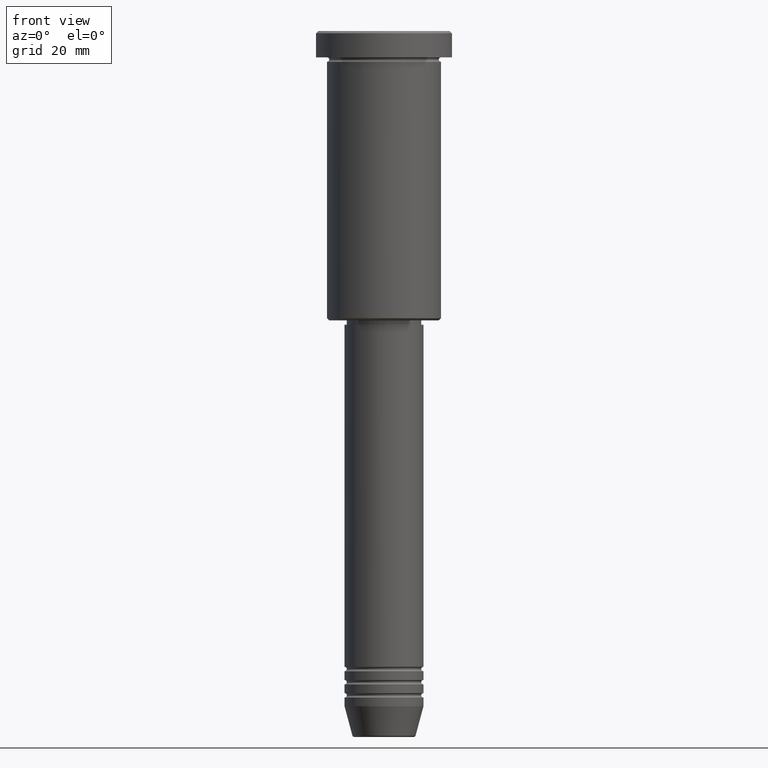
[diagram: clean part render]
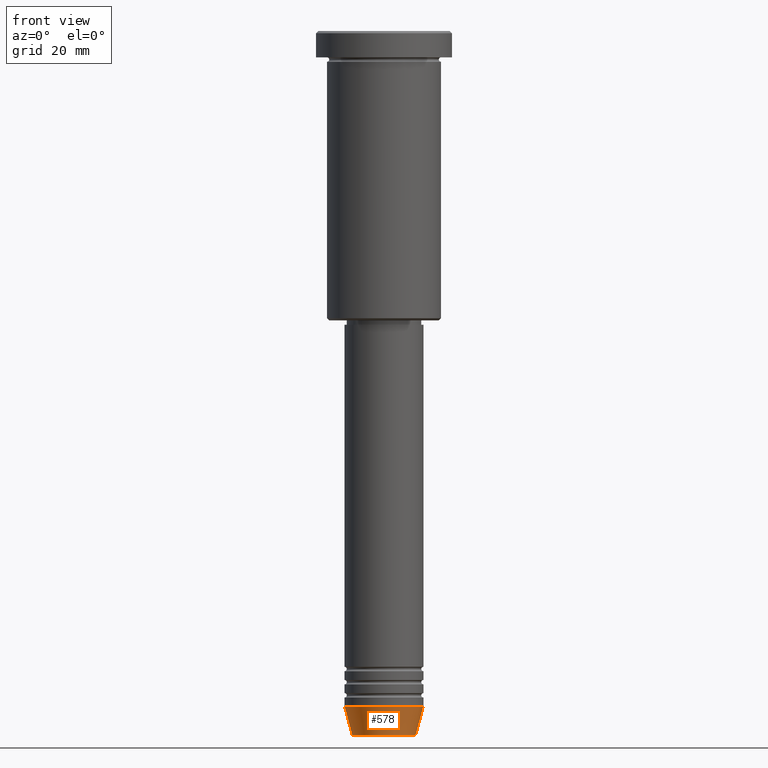
[diagram: same view with one face highlighted and labeled with its STEP entity id]
A machine part, front view. The second image highlights one B-rep face of the part: STEP entity #578.
In plain terms, the highlighted conical surface has half-angle 15 deg.
Its self-contained STEP definition (entity closure, byte-faithful):
#8 = DIRECTION ( 'NONE',  ( -0.000000000000000000, -0.000000000000000000, 1.000000000000000000 ) ) ;
#83 = DIRECTION ( 'NONE',  ( -0.000000000000000000, -0.000000000000000000, 1.000000000000000000 ) ) ;
#113 = EDGE_CURVE ( 'NONE', #597, #614, #524, .T. ) ;
#200 = EDGE_LOOP ( 'NONE', ( #706, #1031, #279, #903 ) ) ;
#279 = ORIENTED_EDGE ( 'NONE', *, *, #113, .T. ) ;
#292 = CIRCLE ( 'NONE', #996, 7.223655072137196598 ) ;
#347 = DIRECTION ( 'NONE',  ( 1.000000000000000000, 0.000000000000000000, 0.000000000000000000 ) ) ;
#354 = FACE_OUTER_BOUND ( 'NONE', #200, .T. ) ;
#368 = VECTOR ( 'NONE', #645, 1000.000000000000000 ) ;
#377 = CARTESIAN_POINT ( 'NONE',  ( -9.000000000000000000, 1.102182119232617714E-15, -154.0000000000000000 ) ) ;
#428 = VECTOR ( 'NONE', #439, 1000.000000000000000 ) ;
#439 = DIRECTION ( 'NONE',  ( 0.2588190451025213501, 0.000000000000000000, 0.9659258262890680902 ) ) ;
#468 = CARTESIAN_POINT ( 'NONE',  ( -9.000000000000000000, 1.102182119232617714E-15, -154.0000000000000000 ) ) ;
#480 = EDGE_CURVE ( 'NONE', #1082, #597, #292, .T. ) ;
#496 = AXIS2_PLACEMENT_3D ( 'NONE', #816, #83, #1166 ) ;
#508 = EDGE_CURVE ( 'NONE', #649, #614, #1094, .T. ) ;
#524 = LINE ( 'NONE', #635, #428 ) ;
#540 = DIRECTION ( 'NONE',  ( -0.000000000000000000, -0.000000000000000000, 1.000000000000000000 ) ) ;
#562 = CARTESIAN_POINT ( 'NONE',  ( -7.223655072137197486, 9.934123627281769054E-16, -160.6294095225512422 ) ) ;
#578 = ADVANCED_FACE ( 'NONE', ( #354 ), #939, .T. ) ;
#587 = AXIS2_PLACEMENT_3D ( 'NONE', #804, #8, #347 ) ;
#597 = VERTEX_POINT ( 'NONE', #886 ) ;
#614 = VERTEX_POINT ( 'NONE', #737 ) ;
#627 = EDGE_CURVE ( 'NONE', #1082, #649, #744, .T. ) ;
#635 = CARTESIAN_POINT ( 'NONE',  ( 9.000000000000000000, 0.000000000000000000, -154.0000000000000000 ) ) ;
#645 = DIRECTION ( 'NONE',  ( -0.2588190451025213501, 3.169619151431772337E-17, 0.9659258262890680902 ) ) ;
#649 = VERTEX_POINT ( 'NONE', #377 ) ;
#706 = ORIENTED_EDGE ( 'NONE', *, *, #627, .F. ) ;
#709 = DIRECTION ( 'NONE',  ( 1.000000000000000000, 0.000000000000000000, 0.000000000000000000 ) ) ;
#720 = CARTESIAN_POINT ( 'NONE',  ( 0.000000000000000000, 0.000000000000000000, -160.6294095225512422 ) ) ;
#737 = CARTESIAN_POINT ( 'NONE',  ( 9.000000000000000000, 0.000000000000000000, -154.0000000000000000 ) ) ;
#744 = LINE ( 'NONE', #468, #368 ) ;
#804 = CARTESIAN_POINT ( 'NONE',  ( 0.000000000000000000, 0.000000000000000000, -154.0000000000000000 ) ) ;
#816 = CARTESIAN_POINT ( 'NONE',  ( 0.000000000000000000, 0.000000000000000000, -154.0000000000000000 ) ) ;
#886 = CARTESIAN_POINT ( 'NONE',  ( 7.223655072137196598, 0.000000000000000000, -160.6294095225512422 ) ) ;
#903 = ORIENTED_EDGE ( 'NONE', *, *, #508, .F. ) ;
#939 = CONICAL_SURFACE ( 'NONE', #496, 9.000000000000000000, 0.2617993877991500740 ) ;
#996 = AXIS2_PLACEMENT_3D ( 'NONE', #720, #540, #709 ) ;
#1031 = ORIENTED_EDGE ( 'NONE', *, *, #480, .T. ) ;
#1082 = VERTEX_POINT ( 'NONE', #562 ) ;
#1094 = CIRCLE ( 'NONE', #587, 9.000000000000000000 ) ;
#1166 = DIRECTION ( 'NONE',  ( 1.000000000000000000, 0.000000000000000000, 0.000000000000000000 ) ) ;